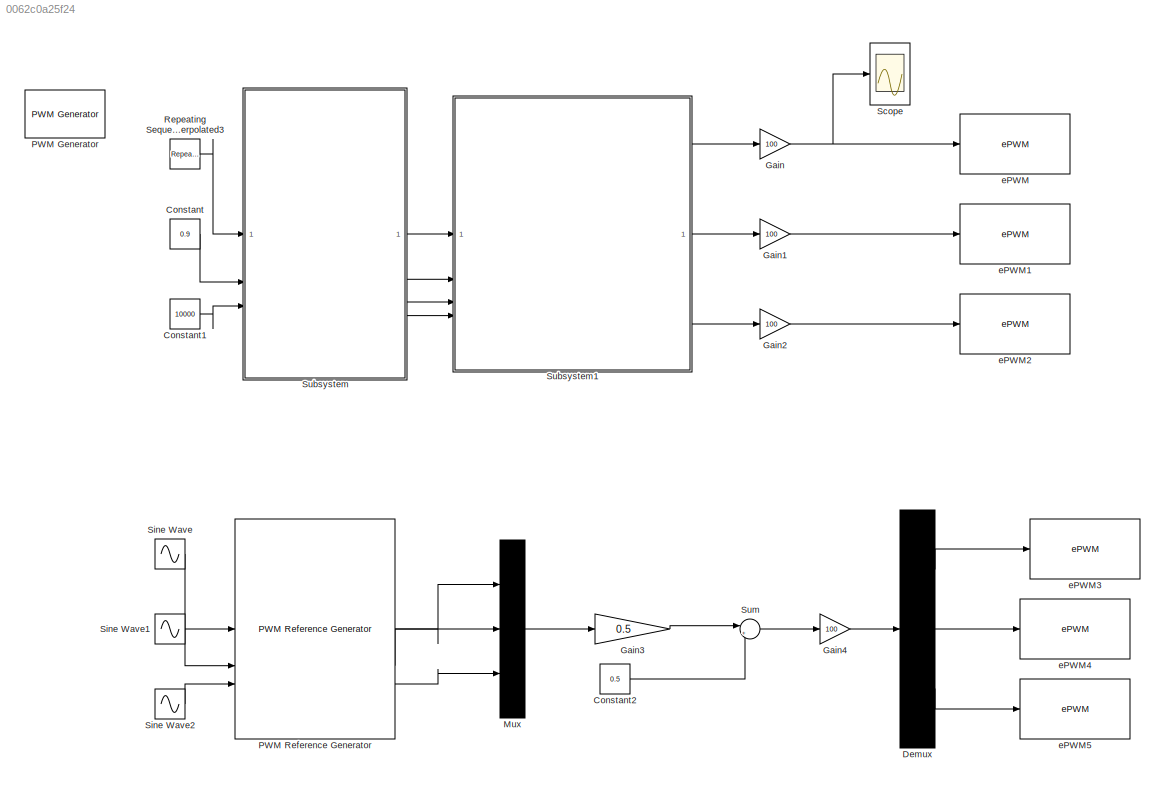
MODEL slx_0062c0a25f24
KIND model
CONFIG AbsTol = auto
CONFIG EnableMultiTasking = on
CONFIG FixedStep = 1e-5
CONFIG MaxStep = auto
CONFIG MinStep = auto
CONFIG RelTol = 1e-3
CONFIG SampleTimeConstraint = Unconstrained
CONFIG SolverName = FixedStepDiscrete
CONFIG StartTime = 0.0
CONFIG StopTime = Inf
BLOCK [Constant] Constant
  Commented = on
  Value = 0.9
BLOCK [Constant] Constant1
  Commented = on
  Value = 10000
BLOCK [Constant] Constant2
  Value = 0.5
BLOCK [Demux] Demux
  Outputs = 3
BLOCK [Gain] Gain
  Commented = on
  Gain = 100
BLOCK [Gain] Gain1
  Commented = on
  Gain = 100
BLOCK [Gain] Gain2
  Commented = on
  Gain = 100
BLOCK [Gain] Gain3
  Gain = 0.5
BLOCK [Gain] Gain4
  Gain = 100
BLOCK [Mux] Mux
  DisplayOption = bar
  Inputs = 3
BLOCK [Reference] PWM Generator  REF=eePwmGenerator/PWM Generator
  Commented = on
  LibrarySourceBlock = ee_sl_lib/Pulse Width\nModulation/PWM Generator
  SourceBlock = eePwmGenerator/PWM Generator
  SourceType = PWM Generator
BLOCK [Reference] PWM Reference Generator  REF=mcbcontrolslib/PWM Reference Generator
  LibrarySourceBlock = mcbhdllib/Controls/Math Transforms/PWM Reference Generator
  SourceBlock = mcbcontrolslib/PWM Reference Generator
  SourceType = PWM Modulation
BLOCK [Reference] Repeating Sequence Interpolated3  REF=simulink/Sources/Repeating
Sequence
Interpolated
  Commented = on
  SourceBlock = simulink/Sources/Repeating\nSequence\nInterpolated
  SourceType = Repeating Sequence Interpolated
BLOCK [Scope] Scope
  Commented = on
  Floating = off
  NumInputPorts = 1
  ScopeSpecificationString = Simulink.scopes.TimeScopeBlockCfg('CurrentConfiguration', extmgr.ConfigurationSet(extmgr.Configuration('Core','General UI',true),extmgr.Configuration('Core','Source UI',true),extmgr.Configuration('Sources','WiredSimulink',true),extmgr.Configuration('Visuals','Time Domain',true),extmgr.Configuration('Tools','Plot Navigation',true),extmgr.Configuration('Tools','Measurements',true)),'Version','2024a'...<+1ch>
BLOCK [Sin] Sine Wave
  Amplitude = 0.95
  Frequency = 100*pi
  SampleTime = 0
BLOCK [Sin] Sine Wave1
  Amplitude = 0.95
  Frequency = 100*pi
  Phase = 2*pi/3
  SampleTime = 0
BLOCK [Sin] Sine Wave2
  Amplitude = 0.95
  Frequency = 100*pi
  Phase = 4*pi/3
  SampleTime = 0
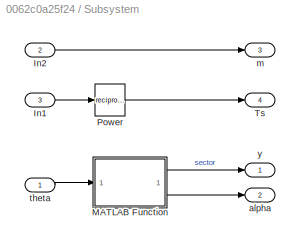
BLOCK [SubSystem] Subsystem
  Commented = on
BLOCK [Inport] Subsystem/In1
  Port = 3
BLOCK [Inport] Subsystem/In2
  Port = 2
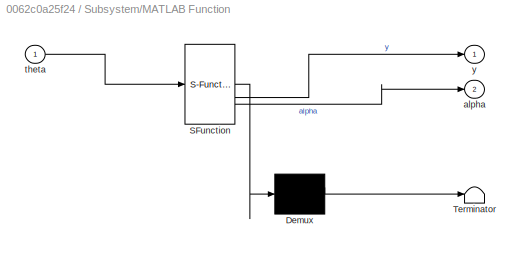
BLOCK [SubSystem] Subsystem/MATLAB Function
  ErrorFcn = Stateflow.Translate.translate
  PermitHierarchicalResolution = ExplicitOnly
  SFBlockType = MATLAB Function
  TreatAsAtomicUnit = on
BLOCK [Demux] Subsystem/MATLAB Function/ Demux 
  Outputs = 1
BLOCK [S-Function] Subsystem/MATLAB Function/ SFunction 
  EnableBusSupport = on
  FunctionName = sf_sfun
  PortCounts = [1 3]
  SFcnIsStateOwnerBlock = off
  SFunctionDeploymentMode = off
  Tag = Stateflow S-Function 2
BLOCK [Terminator] Subsystem/MATLAB Function/ Terminator 
BLOCK [Outport] Subsystem/MATLAB Function/alpha
  Port = 2
BLOCK [Inport] Subsystem/MATLAB Function/theta
BLOCK [Outport] Subsystem/MATLAB Function/y
BLOCK [Math] Subsystem/Power
  Operator = reciprocal
BLOCK [Outport] Subsystem/Ts
  NameLocation = top
  Port = 4
BLOCK [Outport] Subsystem/alpha
  Port = 2
BLOCK [Outport] Subsystem/m
  NameLocation = top
  Port = 3
BLOCK [Inport] Subsystem/theta
BLOCK [Outport] Subsystem/y
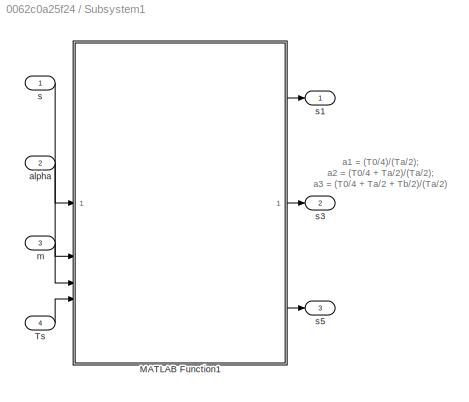
BLOCK [SubSystem] Subsystem1
  Commented = on
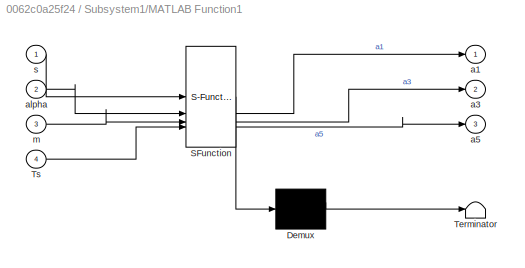
BLOCK [SubSystem] Subsystem1/MATLAB Function1
  ErrorFcn = Stateflow.Translate.translate
  PermitHierarchicalResolution = ExplicitOnly
  SFBlockType = MATLAB Function
  TreatAsAtomicUnit = on
BLOCK [Demux] Subsystem1/MATLAB Function1/ Demux 
  Outputs = 1
BLOCK [S-Function] Subsystem1/MATLAB Function1/ SFunction 
  EnableBusSupport = on
  FunctionName = sf_sfun
  PortCounts = [4 4]
  SFcnIsStateOwnerBlock = off
  SFunctionDeploymentMode = off
  Tag = Stateflow S-Function 1
BLOCK [Terminator] Subsystem1/MATLAB Function1/ Terminator 
BLOCK [Inport] Subsystem1/MATLAB Function1/Ts
  Port = 4
BLOCK [Outport] Subsystem1/MATLAB Function1/a1
BLOCK [Outport] Subsystem1/MATLAB Function1/a3
  Port = 2
BLOCK [Outport] Subsystem1/MATLAB Function1/a5
  Port = 3
BLOCK [Inport] Subsystem1/MATLAB Function1/alpha
  Port = 2
BLOCK [Inport] Subsystem1/MATLAB Function1/m
  Port = 3
BLOCK [Inport] Subsystem1/MATLAB Function1/s
BLOCK [Inport] Subsystem1/Ts
  Port = 4
BLOCK [Inport] Subsystem1/alpha
  Port = 2
BLOCK [Inport] Subsystem1/m
  Port = 3
BLOCK [Inport] Subsystem1/s
BLOCK [Outport] Subsystem1/s1
BLOCK [Outport] Subsystem1/s3
  Port = 2
BLOCK [Outport] Subsystem1/s5
  Port = 3
BLOCK [Sum] Sum
  Inputs = |++
BLOCK [Reference] ePWM  REF=c2802xlib/ePWM
  Commented = on
  SourceBlock = c2802xlib/ePWM
  SourceType = ePWM Type 1-4
  UserDataPersistent = on
BLOCK [Reference] ePWM1  REF=c2802xlib/ePWM
  Commented = on
  SourceBlock = c2802xlib/ePWM
  SourceType = ePWM Type 1-4
  UserDataPersistent = on
BLOCK [Reference] ePWM2  REF=c2802xlib/ePWM
  Commented = on
  SourceBlock = c2802xlib/ePWM
  SourceType = ePWM Type 1-4
  UserDataPersistent = on
BLOCK [Reference] ePWM3  REF=c2802xlib/ePWM
  SourceBlock = c2802xlib/ePWM
  SourceType = ePWM Type 1-4
  UserDataPersistent = on
BLOCK [Reference] ePWM4  REF=c2802xlib/ePWM
  SourceBlock = c2802xlib/ePWM
  SourceType = ePWM Type 1-4
  UserDataPersistent = on
BLOCK [Reference] ePWM5  REF=c2802xlib/ePWM
  SourceBlock = c2802xlib/ePWM
  SourceType = ePWM Type 1-4
  UserDataPersistent = on
ANNOTATION Subsystem1: a1 = (T0/4)/(Ta/2); a2 = (T0/4 + Ta/2)/(Ta/2); a3 = (T0/4 + Ta/2 + Tb/2)/(Ta/2)
LINE Constant1:1 -> Subsystem:3
LINE Constant2:1 -> Sum:2
LINE Constant:1 -> Subsystem:2
LINE Demux:1 -> ePWM3:1
LINE Demux:2 -> ePWM4:1
LINE Demux:3 -> ePWM5:1
LINE Gain1:1 -> ePWM1:1
LINE Gain2:1 -> ePWM2:1
LINE Gain3:1 -> Sum:1
LINE Gain4:1 -> Demux:1
NET Gain:1 -> Scope:1, ePWM:1
LINE Mux:1 -> Gain3:1
LINE PWM Reference Generator:1 -> Mux:1
LINE PWM Reference Generator:2 -> Mux:2
LINE PWM Reference Generator:3 -> Mux:3
LINE Repeating Sequence Interpolated3:1 -> Subsystem:1
LINE Sine Wave1:1 -> PWM Reference Generator:2
LINE Sine Wave2:1 -> PWM Reference Generator:3
LINE Sine Wave:1 -> PWM Reference Generator:1
LINE Subsystem/In1:1 -> Subsystem/Power:1
LINE Subsystem/In2:1 -> Subsystem/m:1
LINE Subsystem/MATLAB Function:1 -> Subsystem/y:1
LINE Subsystem/MATLAB Function:2 -> Subsystem/alpha:1
LINE Subsystem/Power:1 -> Subsystem/Ts:1
LINE Subsystem/theta:1 -> Subsystem/MATLAB Function:1
LINE Subsystem1/MATLAB Function1:1 -> Subsystem1/s1:1
LINE Subsystem1/MATLAB Function1:2 -> Subsystem1/s3:1
LINE Subsystem1/MATLAB Function1:3 -> Subsystem1/s5:1
LINE Subsystem1/Ts:1 -> Subsystem1/MATLAB Function1:4
LINE Subsystem1/alpha:1 -> Subsystem1/MATLAB Function1:2
LINE Subsystem1/m:1 -> Subsystem1/MATLAB Function1:3
LINE Subsystem1/s:1 -> Subsystem1/MATLAB Function1:1
LINE Subsystem1:1 -> Gain:1
LINE Subsystem1:2 -> Gain1:1
LINE Subsystem1:3 -> Gain2:1
LINE Subsystem:1 -> Subsystem1:1
LINE Subsystem:2 -> Subsystem1:2
LINE Subsystem:3 -> Subsystem1:3
LINE Subsystem:4 -> Subsystem1:4
LINE Sum:1 -> Gain4:1
note: NET lines group one-source signal fan-out (src -> all destinations, sorted); 1:1 wires keep LINE
CHART Subsystem1/MATLAB Function1 states=1 transitions=1
  STATE_LABEL 'eML_blk_kernel()'
  STATE_LABEL 'SCRIPT:\nfunction [a1,a3,a5] = fcn(s,alpha,m,Ts)\n\nTa = Ts*m*sin((pi/3)-(alpha-(pi/3)*(s-1)));\nTb = Ts*m*sin(alpha-(pi/3)*(s-1));\nT0 = Ts - Ta - Tb;\n\nswitch(s)\n    case (1)\n        a1 = (T0/4)/(Ta/2);\n        a3 = (T0/4 + Ta/2)/(Ta/2);\n        a5 = (T0/4 + Ta/2 + Tb/2)/(Ta/2);\n    case (2)\n        a3 = (T0/4)/(Ta/2);\n        a1 = (T0/4 + Ta/2)/(Ta/2);\n        a5 = (T0/4 + Ta/2 + Tb/2)/(Ta/2);\n      ...<+541ch>'
CHART Subsystem/MATLAB Function states=1 transitions=1
  STATE_LABEL 'eML_blk_kernel()'
  STATE_LABEL 'SCRIPT:\nfunction [y, alpha] = fcn(theta)\nif (theta >= 0 && theta <= pi/3)\n    u = 1;\nelseif (theta >= pi/3 && theta <= 2*pi/3)\n    u = 2;\nelseif (theta >= 2*pi/3 && theta <= pi)\n    u = 3;\nelseif (theta >= pi && theta <= 4*pi/3)\n    u = 4;\nelseif (theta >= 4*pi/3 && theta <= 5*pi/3)\n    u = 5;\nelse\n    u = 6;\nend\ny = u;\nalpha = theta;'
CHART  states=0 transitions=0
CHART  states=0 transitions=0
